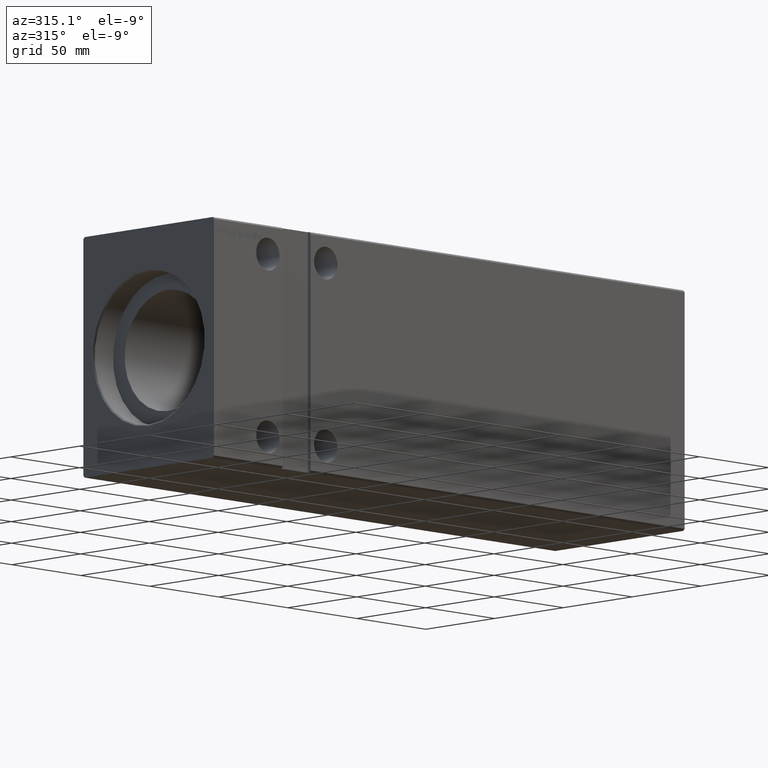
[diagram: clean part render]
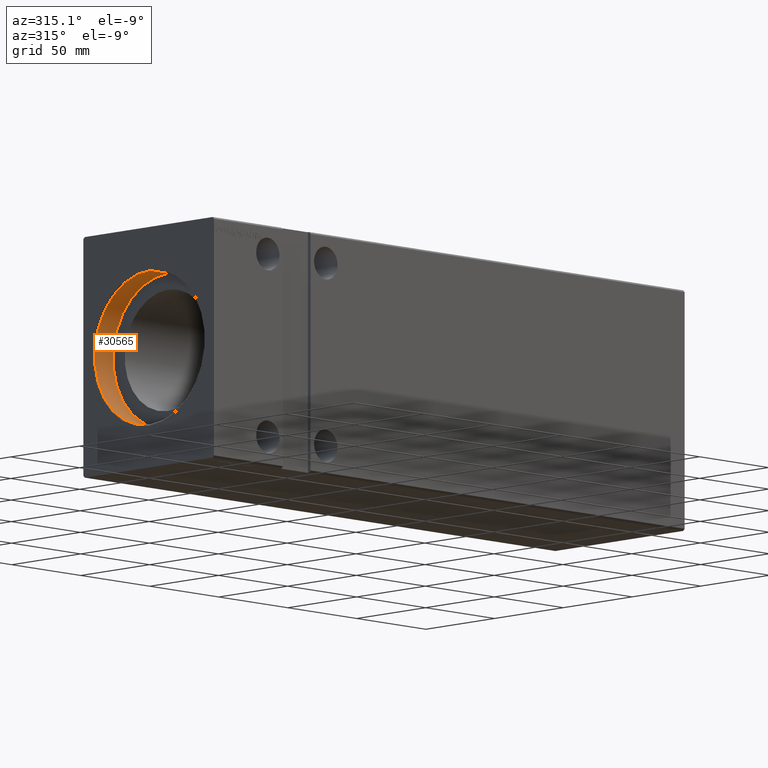
[diagram: same view with one face highlighted and labeled with its STEP entity id]
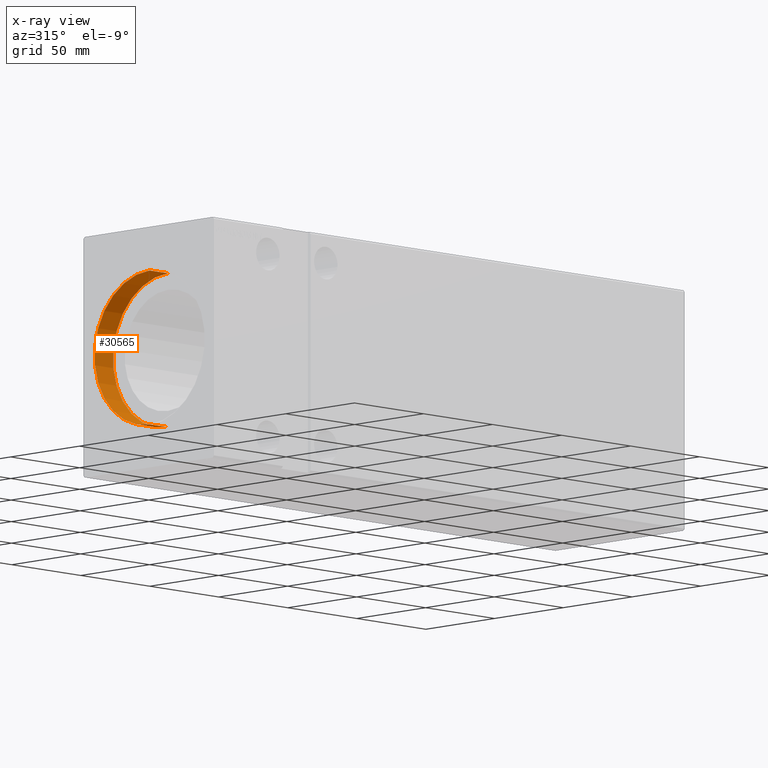
[diagram: x-ray of the same camera — body ghosted, the highlighted face saturated]
A machine part, auxiliary view. The second image highlights one B-rep face of the part: STEP entity #30565.
The next image is the same camera in x-ray: the body ghosted, the highlighted face saturated — about 0% of this face is hidden behind the body in this view.
In plain terms, the highlighted cylindrical surface (partial cylindrical patch) has radius 40 mm, axis along (-1, -0, -0).
Its self-contained STEP definition (entity closure, byte-faithful):
#349 = CIRCLE ( 'NONE', #13865, 40.00000000000000000 ) ;
#2068 = EDGE_CURVE ( 'NONE', #29077, #2778, #14846, .T. ) ;
#2747 = DIRECTION ( 'NONE',  ( 0.000000000000000000, 0.000000000000000000, 1.000000000000000000 ) ) ;
#2778 = VERTEX_POINT ( 'NONE', #10824 ) ;
#4876 = CARTESIAN_POINT ( 'NONE',  ( 0.6999999999999297895, 4.898587196589413026E-15, -40.00000000000000000 ) ) ;
#5939 = CYLINDRICAL_SURFACE ( 'NONE', #11995, 40.00000000000000000 ) ;
#6076 = VECTOR ( 'NONE', #33978, 1000.000000000000000 ) ;
#6951 = DIRECTION ( 'NONE',  ( -1.000000000000000000, -0.000000000000000000, -0.000000000000000000 ) ) ;
#9593 = EDGE_CURVE ( 'NONE', #2778, #16315, #38276, .T. ) ;
#10318 = CARTESIAN_POINT ( 'NONE',  ( 14.00000000000000000, 4.898587196589413026E-15, -40.00000000000000000 ) ) ;
#10824 = CARTESIAN_POINT ( 'NONE',  ( 0.6999999999999297895, 0.000000000000000000, 40.00000000000000000 ) ) ;
#10863 = EDGE_CURVE ( 'NONE', #29077, #15057, #349, .T. ) ;
#11319 = DIRECTION ( 'NONE',  ( -1.000000000000000000, 0.000000000000000000, 0.000000000000000000 ) ) ;
#11390 = EDGE_LOOP ( 'NONE', ( #19826, #15150, #19710, #37022 ) ) ;
#11995 = AXIS2_PLACEMENT_3D ( 'NONE', #18895, #31855, #2747 ) ;
#13205 = CARTESIAN_POINT ( 'NONE',  ( 14.00000000000000000, 0.000000000000000000, 0.000000000000000000 ) ) ;
#13865 = AXIS2_PLACEMENT_3D ( 'NONE', #13205, #32777, #26613 ) ;
#14477 = CARTESIAN_POINT ( 'NONE',  ( 14.00000000000000000, 0.000000000000000000, 40.00000000000000000 ) ) ;
#14846 = LINE ( 'NONE', #40353, #6076 ) ;
#15057 = VERTEX_POINT ( 'NONE', #18351 ) ;
#15150 = ORIENTED_EDGE ( 'NONE', *, *, #10863, .F. ) ;
#16315 = VERTEX_POINT ( 'NONE', #4876 ) ;
#16561 = AXIS2_PLACEMENT_3D ( 'NONE', #40864, #11319, #36831 ) ;
#18351 = CARTESIAN_POINT ( 'NONE',  ( 14.00000000000000000, 4.898587196589413026E-15, -40.00000000000000000 ) ) ;
#18895 = CARTESIAN_POINT ( 'NONE',  ( 14.00000000000000000, 0.000000000000000000, 0.000000000000000000 ) ) ;
#19710 = ORIENTED_EDGE ( 'NONE', *, *, #2068, .T. ) ;
#19826 = ORIENTED_EDGE ( 'NONE', *, *, #41820, .F. ) ;
#24401 = VECTOR ( 'NONE', #6951, 1000.000000000000000 ) ;
#26613 = DIRECTION ( 'NONE',  ( 0.000000000000000000, 0.000000000000000000, 1.000000000000000000 ) ) ;
#26689 = LINE ( 'NONE', #10318, #24401 ) ;
#29077 = VERTEX_POINT ( 'NONE', #14477 ) ;
#30565 = ADVANCED_FACE ( 'NONE', ( #35041 ), #5939, .F. ) ;
#31855 = DIRECTION ( 'NONE',  ( -1.000000000000000000, -0.000000000000000000, -0.000000000000000000 ) ) ;
#32777 = DIRECTION ( 'NONE',  ( -1.000000000000000000, 0.000000000000000000, 0.000000000000000000 ) ) ;
#33978 = DIRECTION ( 'NONE',  ( -1.000000000000000000, -0.000000000000000000, -0.000000000000000000 ) ) ;
#35041 = FACE_OUTER_BOUND ( 'NONE', #11390, .T. ) ;
#36831 = DIRECTION ( 'NONE',  ( 0.000000000000000000, 0.000000000000000000, -1.000000000000000000 ) ) ;
#37022 = ORIENTED_EDGE ( 'NONE', *, *, #9593, .T. ) ;
#38276 = CIRCLE ( 'NONE', #16561, 40.00000000000000000 ) ;
#40353 = CARTESIAN_POINT ( 'NONE',  ( 14.00000000000000000, 0.000000000000000000, 40.00000000000000000 ) ) ;
#40864 = CARTESIAN_POINT ( 'NONE',  ( 0.6999999999999297895, 0.000000000000000000, 0.000000000000000000 ) ) ;
#41820 = EDGE_CURVE ( 'NONE', #15057, #16315, #26689, .T. ) ;